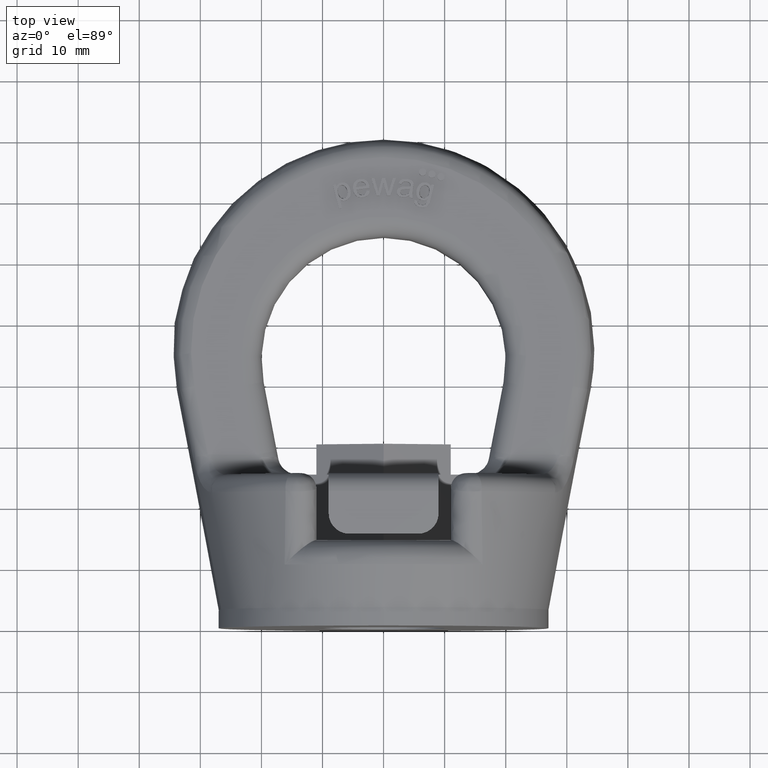
[diagram: clean part render]
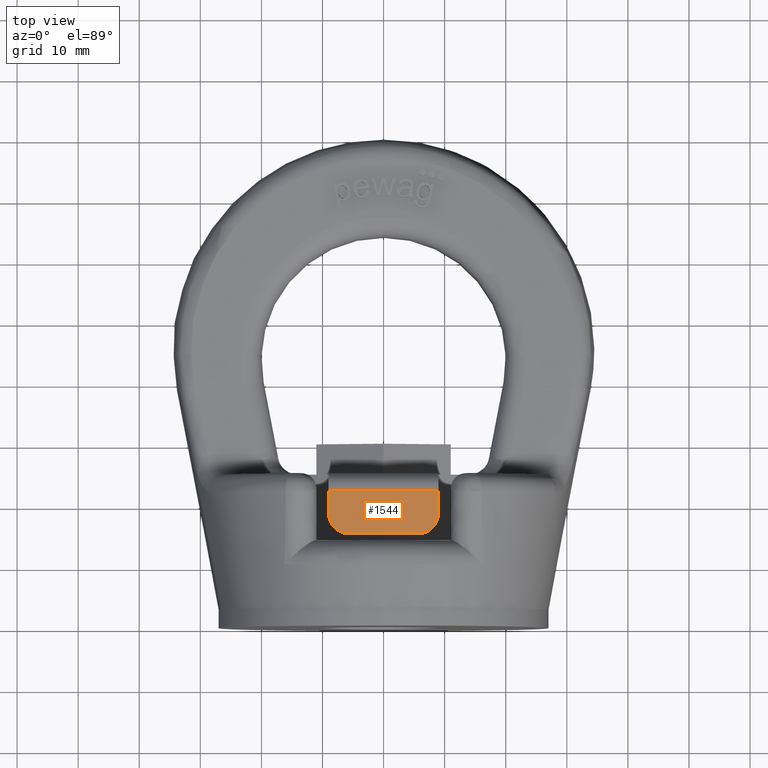
[diagram: same view with one face highlighted and labeled with its STEP entity id]
A machine part, top view. The second image highlights one B-rep face of the part: STEP entity #1544.
In plain terms, the highlighted planar face has unit normal (0, 0, -1).
Its self-contained STEP definition (entity closure, byte-faithful):
#1304=FACE_OUTER_BOUND('',#2085,.T.);
#1544=ADVANCED_FACE('',(#1304),#1667,.F.);
#1667=PLANE('',#5344);
#1756=CIRCLE('',#5342,3.33333333333333);
#1757=CIRCLE('',#5343,3.33333333333333);
#2085=EDGE_LOOP('',(#3778,#3779,#3780,#3781,#3782,#3783));
#2326=LINE('',#9660,#2652);
#2334=LINE('',#9682,#2660);
#2338=LINE('',#9691,#2664);
#2349=LINE('',#9725,#2675);
#2652=VECTOR('',#6099,1.);
#2660=VECTOR('',#6113,1.);
#2664=VECTOR('',#6119,1.);
#2675=VECTOR('',#6158,1.);
#3778=ORIENTED_EDGE('',*,*,#4780,.F.);
#3779=ORIENTED_EDGE('',*,*,#4804,.T.);
#3780=ORIENTED_EDGE('',*,*,#4770,.F.);
#3781=ORIENTED_EDGE('',*,*,#4803,.T.);
#3782=ORIENTED_EDGE('',*,*,#4784,.T.);
#3783=ORIENTED_EDGE('',*,*,#4805,.T.);
#4208=VERTEX_POINT('',#9661);
#4209=VERTEX_POINT('',#9662);
#4218=VERTEX_POINT('',#9681);
#4219=VERTEX_POINT('',#9683);
#4222=VERTEX_POINT('',#9690);
#4223=VERTEX_POINT('',#9692);
#4770=EDGE_CURVE('',#4208,#4209,#2326,.T.);
#4780=EDGE_CURVE('',#4218,#4219,#2334,.T.);
#4784=EDGE_CURVE('',#4223,#4222,#2338,.T.);
#4803=EDGE_CURVE('',#4208,#4223,#2349,.T.);
#4804=EDGE_CURVE('',#4218,#4209,#1756,.T.);
#4805=EDGE_CURVE('',#4222,#4219,#1757,.T.);
#5342=AXIS2_PLACEMENT_3D('',#9727,#6161,#6162);
#5343=AXIS2_PLACEMENT_3D('',#9728,#6163,#6164);
#5344=AXIS2_PLACEMENT_3D('',#9729,#6165,#6166);
#6099=DIRECTION('',(0.,-1.,-4.95635278850516E-16));
#6113=DIRECTION('',(-1.,0.,0.));
#6119=DIRECTION('',(0.,-1.,-4.95635278850516E-16));
#6158=DIRECTION('',(-1.,0.,0.));
#6161=DIRECTION('',(0.,-4.95635278850516E-16,1.));
#6162=DIRECTION('',(0.,1.,0.));
#6163=DIRECTION('',(0.,-4.95635278850516E-16,1.));
#6164=DIRECTION('',(0.,1.,0.));
#6165=DIRECTION('',(0.,4.95635278850516E-16,-1.));
#6166=DIRECTION('',(0.,1.,4.96130914129367E-16));
#9660=CARTESIAN_POINT('',(9.,22.,27.));
#9661=CARTESIAN_POINT('',(9.,22.,27.));
#9662=CARTESIAN_POINT('',(9.,18.3333333333333,27.));
#9681=CARTESIAN_POINT('',(5.66666666666667,15.,27.));
#9682=CARTESIAN_POINT('',(9.,15.,27.));
#9683=CARTESIAN_POINT('',(-5.66666666666667,15.,27.));
#9690=CARTESIAN_POINT('',(-9.,18.3333333333333,27.));
#9691=CARTESIAN_POINT('',(-9.,22.,27.));
#9692=CARTESIAN_POINT('',(-9.,22.,27.));
#9725=CARTESIAN_POINT('',(9.,22.,27.));
#9727=CARTESIAN_POINT('',(5.66666666666667,18.3333333333333,27.));
#9728=CARTESIAN_POINT('',(-5.66666666666667,18.3333333333333,27.));
#9729=CARTESIAN_POINT('',(9.,22.,27.));